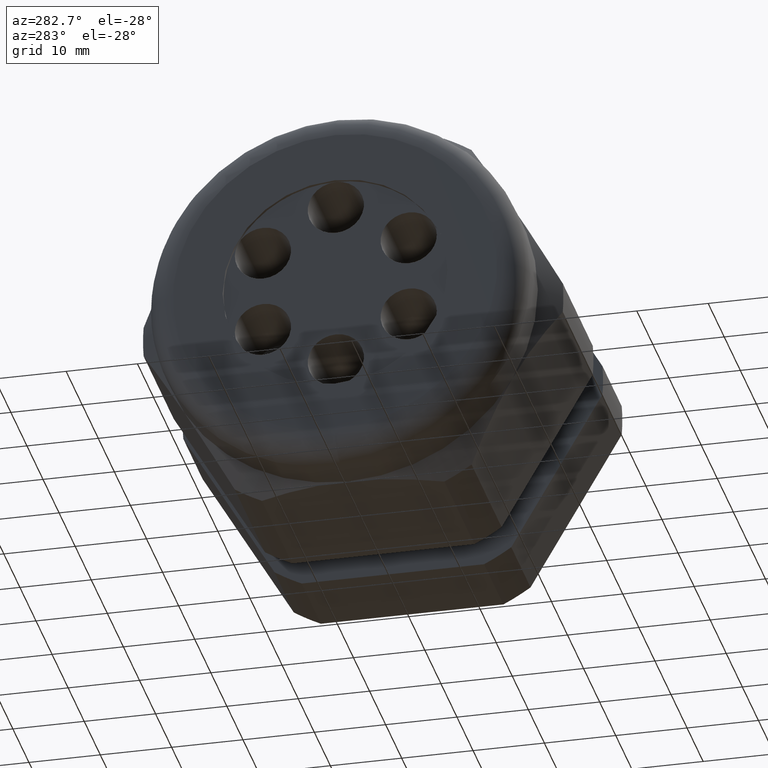
[diagram: clean part render]
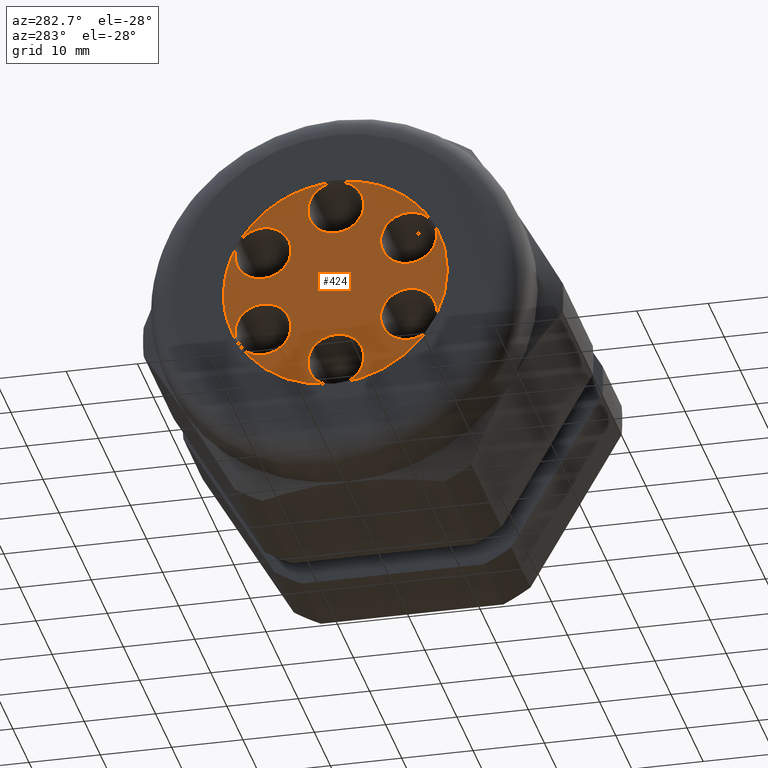
[diagram: same view with one face highlighted and labeled with its STEP entity id]
A machine part, auxiliary view. The second image highlights one B-rep face of the part: STEP entity #424.
In plain terms, the highlighted planar face has unit normal (-1, 0, 0).
Its self-contained STEP definition (entity closure, byte-faithful):
#321 = ORIENTED_EDGE ( 'NONE', *, *, #539, .T. ) ;
#350 = ORIENTED_EDGE ( 'NONE', *, *, #497, .F. ) ;
#351 = EDGE_LOOP ( 'NONE', ( #398, #400 ) ) ;
#368 = EDGE_CURVE ( 'NONE', #541, #540, #1251, .T. ) ;
#398 = ORIENTED_EDGE ( 'NONE', *, *, #399, .F. ) ;
#399 = EDGE_CURVE ( 'NONE', #443, #508, #1314, .T. ) ;
#400 = ORIENTED_EDGE ( 'NONE', *, *, #442, .F. ) ;
#401 = EDGE_LOOP ( 'NONE', ( #402, #404 ) ) ;
#402 = ORIENTED_EDGE ( 'NONE', *, *, #403, .F. ) ;
#403 = EDGE_CURVE ( 'NONE', #484, #503, #1309, .T. ) ;
#404 = ORIENTED_EDGE ( 'NONE', *, *, #483, .F. ) ;
#405 = EDGE_LOOP ( 'NONE', ( #406, #408 ) ) ;
#406 = ORIENTED_EDGE ( 'NONE', *, *, #407, .F. ) ;
#407 = EDGE_CURVE ( 'NONE', #460, #495, #1304, .T. ) ;
#408 = ORIENTED_EDGE ( 'NONE', *, *, #459, .F. ) ;
#409 = EDGE_LOOP ( 'NONE', ( #410, #412 ) ) ;
#410 = ORIENTED_EDGE ( 'NONE', *, *, #411, .F. ) ;
#411 = EDGE_CURVE ( 'NONE', #478, #475, #1298, .T. ) ;
#412 = ORIENTED_EDGE ( 'NONE', *, *, #477, .F. ) ;
#413 = EDGE_LOOP ( 'NONE', ( #414, #416 ) ) ;
#414 = ORIENTED_EDGE ( 'NONE', *, *, #415, .F. ) ;
#415 = EDGE_CURVE ( 'NONE', #533, #434, #1360, .T. ) ;
#416 = ORIENTED_EDGE ( 'NONE', *, *, #532, .F. ) ;
#417 = EDGE_LOOP ( 'NONE', ( #418, #321 ) ) ;
#418 = ORIENTED_EDGE ( 'NONE', *, *, #368, .T. ) ;
#424 = ADVANCED_FACE ( 'NONE', ( #1350, #1349, #1348, #1347, #1346, #1345, #1344 ), #1343, .T. ) ;
#425 = EDGE_LOOP ( 'NONE', ( #426, #350 ) ) ;
#426 = ORIENTED_EDGE ( 'NONE', *, *, #427, .F. ) ;
#427 = EDGE_CURVE ( 'NONE', #438, #436, #1336, .T. ) ;
#434 = VERTEX_POINT ( 'NONE', #1385 ) ;
#436 = VERTEX_POINT ( 'NONE', #1380 ) ;
#438 = VERTEX_POINT ( 'NONE', #1379 ) ;
#442 = EDGE_CURVE ( 'NONE', #508, #443, #1374, .T. ) ;
#443 = VERTEX_POINT ( 'NONE', #1369 ) ;
#459 = EDGE_CURVE ( 'NONE', #495, #460, #1395, .T. ) ;
#460 = VERTEX_POINT ( 'NONE', #1456 ) ;
#475 = VERTEX_POINT ( 'NONE', #1435 ) ;
#477 = EDGE_CURVE ( 'NONE', #475, #478, #1434, .T. ) ;
#478 = VERTEX_POINT ( 'NONE', #1429 ) ;
#483 = EDGE_CURVE ( 'NONE', #503, #484, #1486, .T. ) ;
#484 = VERTEX_POINT ( 'NONE', #1481 ) ;
#495 = VERTEX_POINT ( 'NONE', #1459 ) ;
#497 = EDGE_CURVE ( 'NONE', #436, #438, #1458, .T. ) ;
#503 = VERTEX_POINT ( 'NONE', #1506 ) ;
#508 = VERTEX_POINT ( 'NONE', #1498 ) ;
#532 = EDGE_CURVE ( 'NONE', #434, #533, #1534, .T. ) ;
#533 = VERTEX_POINT ( 'NONE', #1530 ) ;
#539 = EDGE_CURVE ( 'NONE', #540, #541, #1523, .T. ) ;
#540 = VERTEX_POINT ( 'NONE', #1577 ) ;
#541 = VERTEX_POINT ( 'NONE', #1576 ) ;
#1243 = DIRECTION ( 'NONE',  ( 0.0000000000000000000, 0.0000000000000000000, 1.000000000000000000 ) ) ;
#1244 = DIRECTION ( 'NONE',  ( -1.000000000000000000, 0.0000000000000000000, 0.0000000000000000000 ) ) ;
#1245 = CARTESIAN_POINT ( 'NONE',  ( -2.180000000000000200, 0.0000000000000000000, 0.0000000000000000000 ) ) ;
#1246 = AXIS2_PLACEMENT_3D ( 'NONE', #1245, #1244, #1243 ) ;
#1251 = CIRCLE ( 'NONE', #1246, 0.6200000000000000000 ) ;
#1295 = DIRECTION ( 'NONE',  ( -1.000000000000000000, 0.0000000000000000000, 0.0000000000000000000 ) ) ;
#1296 = CARTESIAN_POINT ( 'NONE',  ( -2.180000000000000200, -0.4021648770094181100, -0.2321899999999990600 ) ) ;
#1297 = AXIS2_PLACEMENT_3D ( 'NONE', #1296, #1295, #1362 ) ;
#1298 = CIRCLE ( 'NONE', #1297, 0.1550000000000000300 ) ;
#1300 = DIRECTION ( 'NONE',  ( 0.0000000000000000000, 0.8660254037844363800, -0.5000000000000040000 ) ) ;
#1301 = DIRECTION ( 'NONE',  ( -1.000000000000000000, 0.0000000000000000000, 0.0000000000000000000 ) ) ;
#1302 = CARTESIAN_POINT ( 'NONE',  ( -2.180000000000000200, -0.4021648770094165500, 0.2321900000000018900 ) ) ;
#1303 = AXIS2_PLACEMENT_3D ( 'NONE', #1302, #1301, #1300 ) ;
#1304 = CIRCLE ( 'NONE', #1303, 0.1550000000000000300 ) ;
#1305 = DIRECTION ( 'NONE',  ( 0.0000000000000000000, -6.982966722218764900E-015, -1.000000000000000000 ) ) ;
#1306 = DIRECTION ( 'NONE',  ( -1.000000000000000000, 0.0000000000000000000, 0.0000000000000000000 ) ) ;
#1307 = CARTESIAN_POINT ( 'NONE',  ( -2.180000000000000200, 3.242750086463949600E-015, 0.4643799999999999600 ) ) ;
#1308 = AXIS2_PLACEMENT_3D ( 'NONE', #1307, #1306, #1305 ) ;
#1309 = CIRCLE ( 'NONE', #1308, 0.1550000000000000000 ) ;
#1310 = DIRECTION ( 'NONE',  ( 0.0000000000000000000, -0.8660254037844431500, -0.4999999999999919500 ) ) ;
#1311 = DIRECTION ( 'NONE',  ( -1.000000000000000000, 0.0000000000000000000, 0.0000000000000000000 ) ) ;
#1312 = CARTESIAN_POINT ( 'NONE',  ( -2.180000000000000200, 0.4021648770094197700, 0.2321899999999962600 ) ) ;
#1313 = AXIS2_PLACEMENT_3D ( 'NONE', #1312, #1311, #1310 ) ;
#1314 = CIRCLE ( 'NONE', #1313, 0.1550000000000000300 ) ;
#1332 = DIRECTION ( 'NONE',  ( 0.0000000000000000000, -0.8660254037844328200, 0.5000000000000102100 ) ) ;
#1333 = DIRECTION ( 'NONE',  ( -1.000000000000000000, 0.0000000000000000000, 0.0000000000000000000 ) ) ;
#1334 = CARTESIAN_POINT ( 'NONE',  ( -2.180000000000000200, 0.4021648770094149400, -0.2321900000000046700 ) ) ;
#1335 = AXIS2_PLACEMENT_3D ( 'NONE', #1334, #1333, #1332 ) ;
#1336 = CIRCLE ( 'NONE', #1335, 0.1550000000000000300 ) ;
#1338 = DIRECTION ( 'NONE',  ( 0.0000000000000000000, 0.0000000000000000000, 1.000000000000000000 ) ) ;
#1339 = DIRECTION ( 'NONE',  ( -1.000000000000000000, 0.0000000000000000000, 0.0000000000000000000 ) ) ;
#1340 = CARTESIAN_POINT ( 'NONE',  ( -2.180000000000000200, 0.0000000000000000000, 0.0000000000000000000 ) ) ;
#1342 = AXIS2_PLACEMENT_3D ( 'NONE', #1340, #1339, #1338 ) ;
#1343 = PLANE ( 'NONE',  #1342 ) ;
#1344 = FACE_OUTER_BOUND ( 'NONE', #417, .T. ) ;
#1345 = FACE_BOUND ( 'NONE', #413, .T. ) ;
#1346 = FACE_BOUND ( 'NONE', #409, .T. ) ;
#1347 = FACE_BOUND ( 'NONE', #405, .T. ) ;
#1348 = FACE_BOUND ( 'NONE', #401, .T. ) ;
#1349 = FACE_BOUND ( 'NONE', #351, .T. ) ;
#1350 = FACE_BOUND ( 'NONE', #425, .T. ) ;
#1356 = DIRECTION ( 'NONE',  ( 0.0000000000000000000, 0.0000000000000000000, 1.000000000000000000 ) ) ;
#1357 = DIRECTION ( 'NONE',  ( -1.000000000000000000, 0.0000000000000000000, 0.0000000000000000000 ) ) ;
#1358 = CARTESIAN_POINT ( 'NONE',  ( -2.180000000000000200, 0.0000000000000000000, -0.4643799999999999600 ) ) ;
#1359 = AXIS2_PLACEMENT_3D ( 'NONE', #1358, #1357, #1356 ) ;
#1360 = CIRCLE ( 'NONE', #1359, 0.1550000000000000000 ) ;
#1362 = DIRECTION ( 'NONE',  ( 0.0000000000000000000, 0.8660254037844399300, 0.4999999999999978400 ) ) ;
#1369 = CARTESIAN_POINT ( 'NONE',  ( -2.180000000000000200, 0.4021648770094197700, 0.3871899999999963100 ) ) ;
#1370 = DIRECTION ( 'NONE',  ( 0.0000000000000000000, -0.8660254037844431500, -0.4999999999999919500 ) ) ;
#1371 = DIRECTION ( 'NONE',  ( -1.000000000000000000, 0.0000000000000000000, 0.0000000000000000000 ) ) ;
#1372 = CARTESIAN_POINT ( 'NONE',  ( -2.180000000000000200, 0.4021648770094197700, 0.2321899999999962600 ) ) ;
#1373 = AXIS2_PLACEMENT_3D ( 'NONE', #1372, #1371, #1370 ) ;
#1374 = CIRCLE ( 'NONE', #1373, 0.1550000000000000300 ) ;
#1379 = CARTESIAN_POINT ( 'NONE',  ( -2.180000000000000200, 0.4021648770094149400, -0.07719000000000464400 ) ) ;
#1380 = CARTESIAN_POINT ( 'NONE',  ( -2.180000000000000200, 0.4021648770094149400, -0.3871900000000047000 ) ) ;
#1385 = CARTESIAN_POINT ( 'NONE',  ( -2.180000000000000200, 1.898202538678398200E-017, -0.6193799999999999300 ) ) ;
#1392 = DIRECTION ( 'NONE',  ( -1.000000000000000000, 0.0000000000000000000, 0.0000000000000000000 ) ) ;
#1393 = CARTESIAN_POINT ( 'NONE',  ( -2.180000000000000200, -0.4021648770094165500, 0.2321900000000018900 ) ) ;
#1394 = AXIS2_PLACEMENT_3D ( 'NONE', #1393, #1392, #1457 ) ;
#1395 = CIRCLE ( 'NONE', #1394, 0.1550000000000000300 ) ;
#1429 = CARTESIAN_POINT ( 'NONE',  ( -2.180000000000000200, -0.4021648770094181100, -0.07718999999999905100 ) ) ;
#1430 = DIRECTION ( 'NONE',  ( 0.0000000000000000000, 0.8660254037844399300, 0.4999999999999978400 ) ) ;
#1431 = DIRECTION ( 'NONE',  ( -1.000000000000000000, 0.0000000000000000000, 0.0000000000000000000 ) ) ;
#1432 = CARTESIAN_POINT ( 'NONE',  ( -2.180000000000000200, -0.4021648770094181100, -0.2321899999999990600 ) ) ;
#1433 = AXIS2_PLACEMENT_3D ( 'NONE', #1432, #1431, #1430 ) ;
#1434 = CIRCLE ( 'NONE', #1433, 0.1550000000000000300 ) ;
#1435 = CARTESIAN_POINT ( 'NONE',  ( -2.180000000000000200, -0.4021648770094181100, -0.3871899999999990900 ) ) ;
#1456 = CARTESIAN_POINT ( 'NONE',  ( -2.180000000000000200, -0.4021648770094165500, 0.3871900000000018700 ) ) ;
#1457 = DIRECTION ( 'NONE',  ( 0.0000000000000000000, 0.8660254037844363800, -0.5000000000000040000 ) ) ;
#1458 = CIRCLE ( 'NONE', #1519, 0.1550000000000000300 ) ;
#1459 = CARTESIAN_POINT ( 'NONE',  ( -2.180000000000000200, -0.4021648770094165500, 0.07719000000000188200 ) ) ;
#1481 = CARTESIAN_POINT ( 'NONE',  ( -2.180000000000000200, 3.242750086463949600E-015, 0.6193799999999999300 ) ) ;
#1482 = DIRECTION ( 'NONE',  ( 0.0000000000000000000, -6.982966722218764900E-015, -1.000000000000000000 ) ) ;
#1483 = DIRECTION ( 'NONE',  ( -1.000000000000000000, 0.0000000000000000000, 0.0000000000000000000 ) ) ;
#1484 = CARTESIAN_POINT ( 'NONE',  ( -2.180000000000000200, 3.242750086463949600E-015, 0.4643799999999999600 ) ) ;
#1485 = AXIS2_PLACEMENT_3D ( 'NONE', #1484, #1483, #1482 ) ;
#1486 = CIRCLE ( 'NONE', #1485, 0.1550000000000000000 ) ;
#1498 = CARTESIAN_POINT ( 'NONE',  ( -2.180000000000000200, 0.4021648770094197700, 0.07718999999999624800 ) ) ;
#1506 = CARTESIAN_POINT ( 'NONE',  ( -2.180000000000000200, 3.261732111850733400E-015, 0.3093799999999999900 ) ) ;
#1516 = DIRECTION ( 'NONE',  ( 0.0000000000000000000, -0.8660254037844328200, 0.5000000000000102100 ) ) ;
#1517 = DIRECTION ( 'NONE',  ( -1.000000000000000000, 0.0000000000000000000, 0.0000000000000000000 ) ) ;
#1518 = CARTESIAN_POINT ( 'NONE',  ( -2.180000000000000200, 0.4021648770094149400, -0.2321900000000046700 ) ) ;
#1519 = AXIS2_PLACEMENT_3D ( 'NONE', #1518, #1517, #1516 ) ;
#1523 = CIRCLE ( 'NONE', #1581, 0.6200000000000000000 ) ;
#1530 = CARTESIAN_POINT ( 'NONE',  ( -2.180000000000000200, 0.0000000000000000000, -0.3093799999999999900 ) ) ;
#1531 = DIRECTION ( 'NONE',  ( 0.0000000000000000000, 0.0000000000000000000, 1.000000000000000000 ) ) ;
#1532 = DIRECTION ( 'NONE',  ( -1.000000000000000000, 0.0000000000000000000, 0.0000000000000000000 ) ) ;
#1533 = AXIS2_PLACEMENT_3D ( 'NONE', #1538, #1532, #1531 ) ;
#1534 = CIRCLE ( 'NONE', #1533, 0.1550000000000000000 ) ;
#1538 = CARTESIAN_POINT ( 'NONE',  ( -2.180000000000000200, 0.0000000000000000000, -0.4643799999999999600 ) ) ;
#1576 = CARTESIAN_POINT ( 'NONE',  ( -2.180000000000000200, 0.0000000000000000000, 0.6200000000000000000 ) ) ;
#1577 = CARTESIAN_POINT ( 'NONE',  ( -2.180000000000000200, 7.592810154713589100E-017, -0.6200000000000000000 ) ) ;
#1578 = DIRECTION ( 'NONE',  ( 0.0000000000000000000, 0.0000000000000000000, 1.000000000000000000 ) ) ;
#1579 = DIRECTION ( 'NONE',  ( -1.000000000000000000, 0.0000000000000000000, 0.0000000000000000000 ) ) ;
#1580 = CARTESIAN_POINT ( 'NONE',  ( -2.180000000000000200, 0.0000000000000000000, 0.0000000000000000000 ) ) ;
#1581 = AXIS2_PLACEMENT_3D ( 'NONE', #1580, #1579, #1578 ) ;